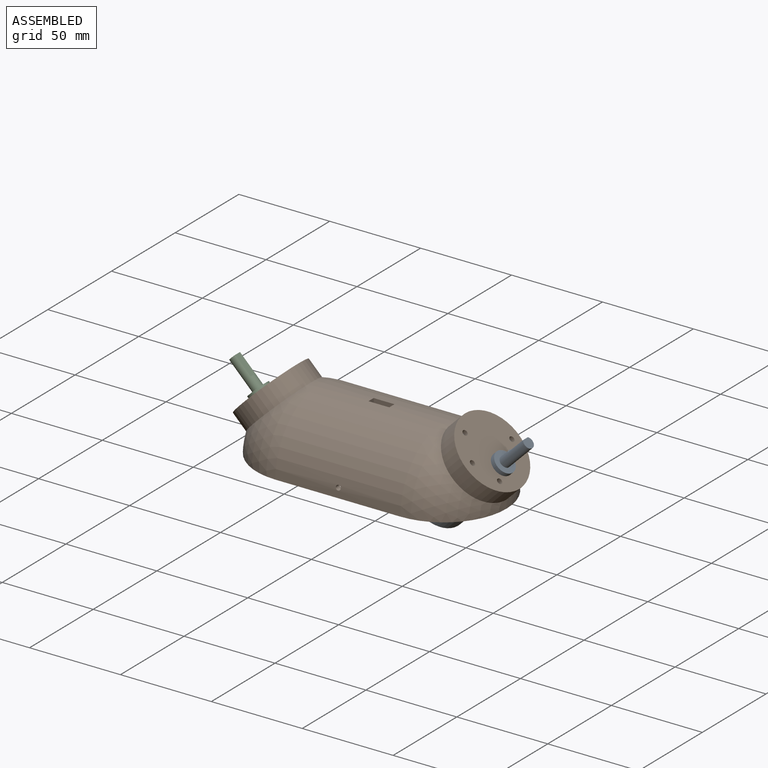
[diagram: assembled view]
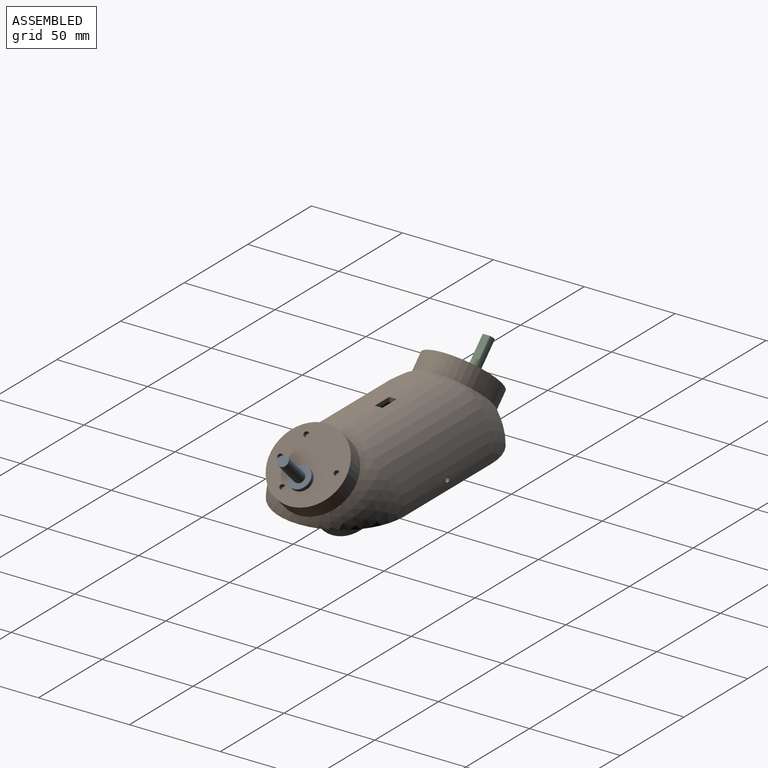
[diagram: assembled view, second angle]
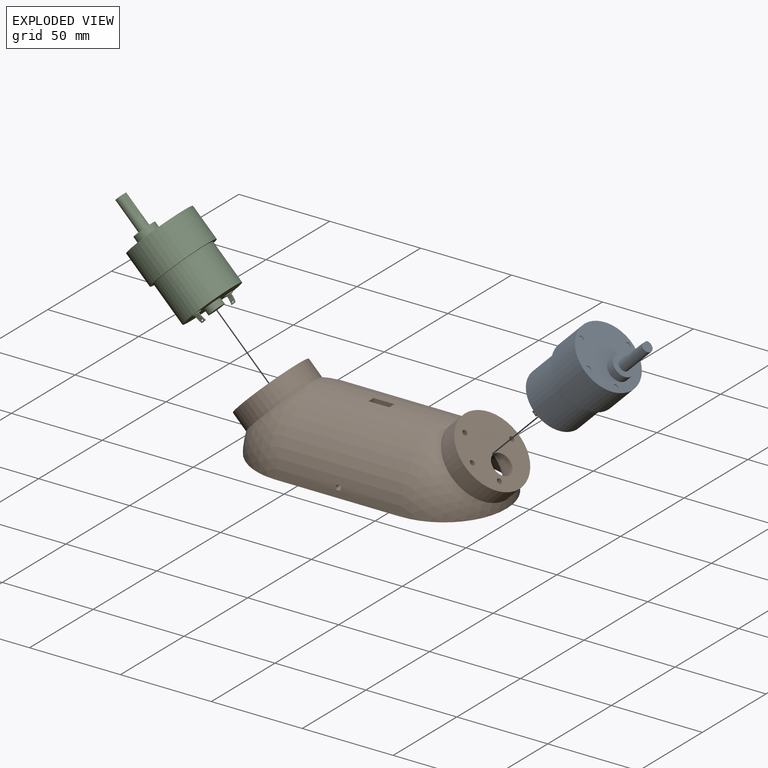
[diagram: exploded view]
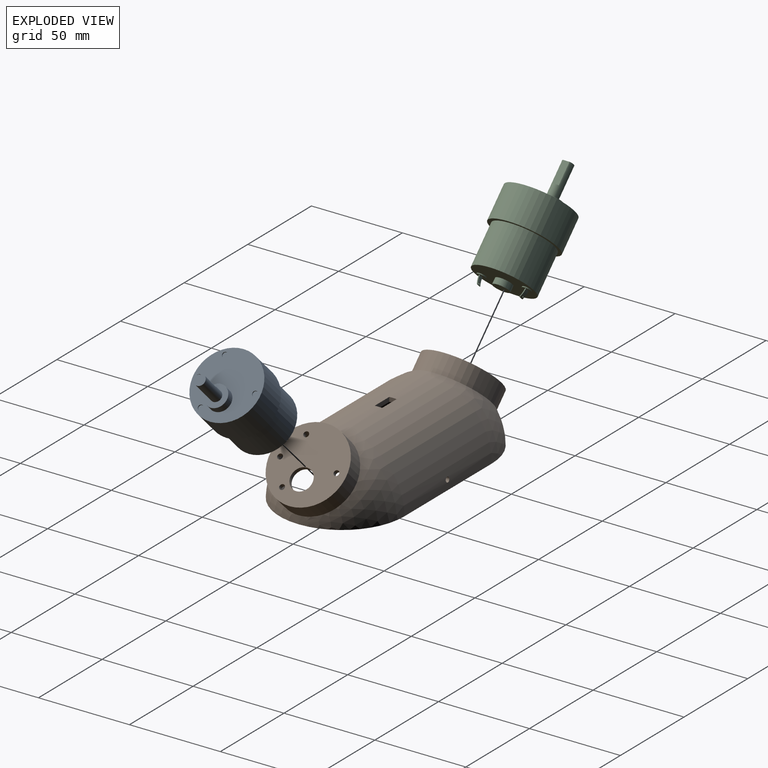
[diagram: exploded view, second angle]
ASSEMBLY  parts=3 mates=2
PART A: 37 faces, bbox 68.8x37x37 mm
  f0: plane 4.73x4.73mm, normal (-1,0,0), area 16.1mm2, adj f4,f17,f19,f20,f21
  f1: cylinder r=16.5mm len=33mm, axis (-1,0,0), area 2338.9mm2, adj f7,f9
  f2: cylinder r=4.53mm len=9.05mm, axis (1,0,0), area 95mm2, adj f3,f7
  f3: plane 9.05x9.05mm, normal (-1,0,0), area 64.3mm2, adj f2
  f4: cylinder r=2.36mm len=4.73mm, axis (1,0,0), area 7.4mm2, adj f0,f7
  f5: cylinder r=2.36mm len=4.73mm, axis (1,0,0), area 7.4mm2, adj f6,f7
  f6: plane 4.73x4.73mm, normal (-1,0,0), area 16.1mm2, adj f5,f22,f23,f25,f26
  f7: plane 33x33mm, normal (-1,0,0), area 755.8mm2, adj f1,f2,f4,f5
  f8: cylinder r=18.5mm len=37mm, axis (-1,0,0), area 2143.4mm2, adj f9,f10
  f9: plane 37x37mm, normal (-1,0,0), area 219.9mm2, adj f1,f8
  f10: plane 37x37mm, normal (1,0,0), area 935.2mm2, adj f8,f11,f29,f31,f33,f35
  f11: cylinder r=6mm len=12mm, axis (-1,0,0), area 169.6mm2, adj f10,f12
  f12: plane 12x12mm, normal (1,0,0), area 84.8mm2, adj f11,f13
  f13: cylinder r=3mm len=18.3mm, axis (-1,0,0), area 296mm2, adj f12,f14,f15,f16
  f14: plane 6x5.33mm, normal (1,0,0), area 26.6mm2, adj f13,f15
  f15: plane 12x3.77mm, normal (0,0,1), area 45.2mm2, adj f13,f14,f16
  f16: plane 3.77x0.67mm, normal (1,0,0), area 1.7mm2, adj f13,f15
  f17: cylinder r=12.45mm len=4.5mm, axis (0,0,-1), area 12.5mm2, adj f0,f18,f20,f21,f28
  f18: plane 2.87x0.5mm, normal (-1,0,0), area 1.4mm2, adj f17,f19,f20,f21
  f19: cylinder r=12.45mm len=4.5mm, axis (0,0,-1), area 12.5mm2, adj f0,f18,f20,f21,f28
  f20: plane 4.5x1.54mm, normal (0,0,1), area 2.2mm2, adj f0,f17,f18,f19
  f21: plane 4.5x1.54mm, normal (0,0,-1), area 2.2mm2, adj f0,f17,f18,f19
  f22: cylinder r=12.45mm len=4.5mm, axis (0,0,-1), area 12.5mm2, adj f6,f24,f25,f26,f27
  f23: cylinder r=12.45mm len=4.5mm, axis (0,0,-1), area 12.5mm2, adj f6,f24,f25,f26,f27
  f24: plane 2.87x0.5mm, normal (-1,0,0), area 1.4mm2, adj f22,f23,f25,f26
  f25: plane 4.5x1.54mm, normal (0,0,1), area 2.2mm2, adj f6,f22,f23,f24
  f26: plane 4.5x1.54mm, normal (0,0,-1), area 2.2mm2, adj f6,f22,f23,f24
  f27: extruded ~1.29x0.75mm, area 1.6mm2, adj f22,f23
  f28: extruded ~1.29x0.75mm, area 1.6mm2, adj f17,f19
  f29: cylinder r=1.46mm len=2.93mm, axis (1,0,0), area 4.6mm2, adj f10,f30
  f30: plane 2.93x2.93mm, normal (1,0,0), area 6.7mm2, adj f29
  f31: cylinder r=1.46mm len=2.93mm, axis (1,0,0), area 4.6mm2, adj f10,f32
  f32: plane 2.93x2.93mm, normal (1,0,0), area 6.7mm2, adj f31
  f33: cylinder r=1.46mm len=2.93mm, axis (1,0,0), area 4.6mm2, adj f10,f34
  f34: plane 2.93x2.93mm, normal (1,0,0), area 6.7mm2, adj f33
  f35: cylinder r=1.46mm len=2.93mm, axis (1,0,0), area 4.6mm2, adj f10,f36
  f36: plane 2.93x2.93mm, normal (1,0,0), area 6.7mm2, adj f35
PART B: 61 faces, bbox 151.5x68.7x42.1 mm
  f0: plane 3.13x2.8mm, normal (0.87,0,-0.5), area 9.6mm2, adj f3,f4,f12,f45
  f1: plane 6.42x3.7mm, normal (-0.87,0,0.5), area 12.7mm2, adj f2,f5,f12,f45
  f2: plane 3.13x2.8mm, normal (-0.87,0,-0.5), area 9.6mm2, adj f1,f6,f12,f45
  f3: plane 6.42x3.7mm, normal (0.87,0,0.5), area 12.7mm2, adj f0,f5,f12,f45
  f4: plane 3.29x2.8mm, normal (0,0,-1), area 9.2mm2, adj f0,f8,f12,f45
  f5: plane 6.39x0.74mm, normal (0,0,1), area 4.7mm2, adj f1,f3,f12,f45
  f6: plane 3.29x2.8mm, normal (0,0,-1), area 9.2mm2, adj f2,f7,f12,f45
  f7: plane 3.13x2.8mm, normal (0.87,0,0.5), area 9.6mm2, adj f6,f10,f12,f45
  f8: plane 3.13x2.8mm, normal (-0.87,0,0.5), area 9.6mm2, adj f4,f9,f12,f45
  f9: plane 3.13x2.47mm, normal (-0.87,0,-0.5), area 7.8mm2, adj f8,f11,f12,f45
  f10: plane 3.13x2.47mm, normal (0.87,0,-0.5), area 7.8mm2, adj f7,f11,f12,f45
  f11: plane 3.61x1.8mm, normal (0,0,-1), area 6.5mm2, adj f9,f10,f12,f45
  f12: cylinder r=31.85mm len=68.71mm, axis (-1,0,0), area 6677.1mm2, adj f0,f1,f2,f3,f4,f5,f6,f7
  f13: sphere r=34.35mm, area 2157.3mm2, adj f16,f17,f22
  f14: sphere r=31.85mm, area 1603.4mm2, adj f12,f17,f20
  f15: sphere r=34.35mm, area 2158mm2, adj f16,f17,f26
  f16: cylinder r=34.35mm len=68.71mm, axis (-1,0,0), area 7357.4mm2, adj f13,f15,f17,f27,f28,f29,f30,f31
  f17: plane 137.42x68.71mm, normal (0,0,-1), area 863.5mm2, adj f12,f13,f14,f15,f16,f18
  f18: sphere r=31.85mm, area 1605.1mm2, adj f12,f17,f24
  f19: plane 42.05x29.73mm, normal (-0.71,0,-0.71), area 310.6mm2, adj f20,f21
  f20: cylinder r=21.02mm len=42.05mm, axis (-0.71,0,-0.71), area 519.1mm2, adj f14,f19
  f21: cylinder r=18.52mm len=37.05mm, axis (-0.71,0,-0.71), area 1745.9mm2, adj f19,f47
  f22: cylinder r=21.02mm len=42.05mm, axis (-0.71,0,-0.71), area 1364.8mm2, adj f13,f53
  f23: plane 42.05x29.73mm, normal (0.71,0,-0.71), area 310.6mm2, adj f24,f25
  f24: cylinder r=21.02mm len=42.05mm, axis (0.71,0,-0.71), area 519.1mm2, adj f18,f23
  f25: cylinder r=18.52mm len=37.05mm, axis (0.71,0,-0.71), area 1745.9mm2, adj f23,f54
  f26: cylinder r=21.02mm len=42.05mm, axis (0.71,0,-0.71), area 1364.8mm2, adj f15,f60
  f27: plane 4.07x2.57mm, normal (-1,0,0), area 10.2mm2, adj f12,f16,f28,f30
  f28: plane 11.43x2.5mm, normal (0,-1,0), area 28.6mm2, adj f12,f16,f27,f29
  f29: plane 4.07x2.57mm, normal (1,0,0), area 10.2mm2, adj f12,f16,f28,f30
  f30: plane 11.43x2.5mm, normal (0,1,0), area 28.6mm2, adj f12,f16,f27,f29
  f31: cylinder r=1.35mm len=2.95mm, axis (0,1,0), area 21.5mm2, adj f12,f16
  f32: cylinder r=1.35mm len=2.95mm, axis (0,1,0), area 21.5mm2, adj f12,f16
  f33: plane 3.13x2.8mm, normal (0.87,0,-0.5), area 9.6mm2, adj f12,f40,f41,f46
  f34: plane 6.42x3.7mm, normal (-0.87,0,0.5), area 12.7mm2, adj f12,f39,f42,f46
  f35: plane 3.13x2.8mm, normal (0.87,0,0.5), area 9.6mm2, adj f12,f38,f43,f46
  f36: plane 3.13x2.8mm, normal (-0.87,0,0.5), area 9.6mm2, adj f12,f37,f41,f46
  f37: plane 3.13x2.47mm, normal (-0.87,0,-0.5), area 7.8mm2, adj f12,f36,f44,f46
  f38: plane 3.13x2.47mm, normal (0.87,0,-0.5), area 7.8mm2, adj f12,f35,f44,f46
  f39: plane 3.13x2.8mm, normal (-0.87,0,-0.5), area 9.6mm2, adj f12,f34,f43,f46
  f40: plane 6.42x3.7mm, normal (0.87,0,0.5), area 12.7mm2, adj f12,f33,f42,f46
  f41: plane 3.29x2.8mm, normal (0,0,-1), area 9.2mm2, adj f12,f33,f36,f46
  f42: plane 6.39x0.74mm, normal (0,0,1), area 4.7mm2, adj f12,f34,f40,f46
  f43: plane 3.29x2.8mm, normal (0,0,-1), area 9.2mm2, adj f12,f35,f39,f46
  f44: plane 3.61x1.8mm, normal (0,0,-1), area 6.5mm2, adj f12,f37,f38,f46
  f45: plane 13.8x9.54mm, normal (0,-1,0), area 68.4mm2, adj f0,f1,f2,f3,f4,f5,f6,f7
  f46: plane 13.8x9.54mm, normal (0,1,0), area 68.4mm2, adj f33,f34,f35,f36,f37,f38,f39,f40
  f47: plane 37.05x26.2mm, normal (-0.71,0,-0.71), area 938.1mm2, adj f21,f48,f49,f50,f51,f52
  f48: cylinder r=6mm len=12mm, axis (-0.71,0,-0.71), area 94.2mm2, adj f47,f53
  f49: cylinder r=1.46mm len=3.84mm, axis (-0.71,0,-0.71), area 23mm2, adj f47,f53
  f50: cylinder r=1.46mm len=3.84mm, axis (-0.71,0,-0.71), area 23mm2, adj f47,f53
  f51: cylinder r=1.46mm len=3.84mm, axis (-0.71,0,-0.71), area 23mm2, adj f47,f53
  f52: cylinder r=1.46mm len=3.84mm, axis (-0.71,0,-0.71), area 23mm2, adj f47,f53
  f53: plane 42.05x29.73mm, normal (0.71,0,0.71), area 1248.8mm2, adj f22,f48,f49,f50,f51,f52
  f54: plane 37.05x26.2mm, normal (0.71,0,-0.71), area 938.1mm2, adj f25,f55,f56,f57,f58,f59
  f55: cylinder r=6mm len=12mm, axis (0.71,0,-0.71), area 94.2mm2, adj f54,f60
  f56: cylinder r=1.46mm len=3.84mm, axis (0.71,0,-0.71), area 23mm2, adj f54,f60
  f57: cylinder r=1.46mm len=3.84mm, axis (0.71,0,-0.71), area 23mm2, adj f54,f60
  f58: cylinder r=1.46mm len=3.84mm, axis (0.71,0,-0.71), area 23mm2, adj f54,f60
  f59: cylinder r=1.46mm len=3.84mm, axis (0.71,0,-0.71), area 23mm2, adj f54,f60
  f60: plane 42.05x29.73mm, normal (-0.71,0,0.71), area 1248.8mm2, adj f26,f55,f56,f57,f58,f59
PART C: same geometry as A
PLACE A rot(axis=(0,-1,0),45deg) t=(25.38,12.37,-1.25)mm
PLACE B t=(-5.09,12.37,2.64)mm fixed
PLACE C rot(axis=(-0.38,0,-0.92),180deg) t=(-35.55,12.37,-1.25)mm
MATE fastened B.f55 <-> C.f11  axis (-0.71,0,0.71) through (-71.19,12.37,23.92)mm
MATE fastened B.f48 <-> A.f11  axis (0.71,0,0.71) through (61.02,12.37,23.92)mm
